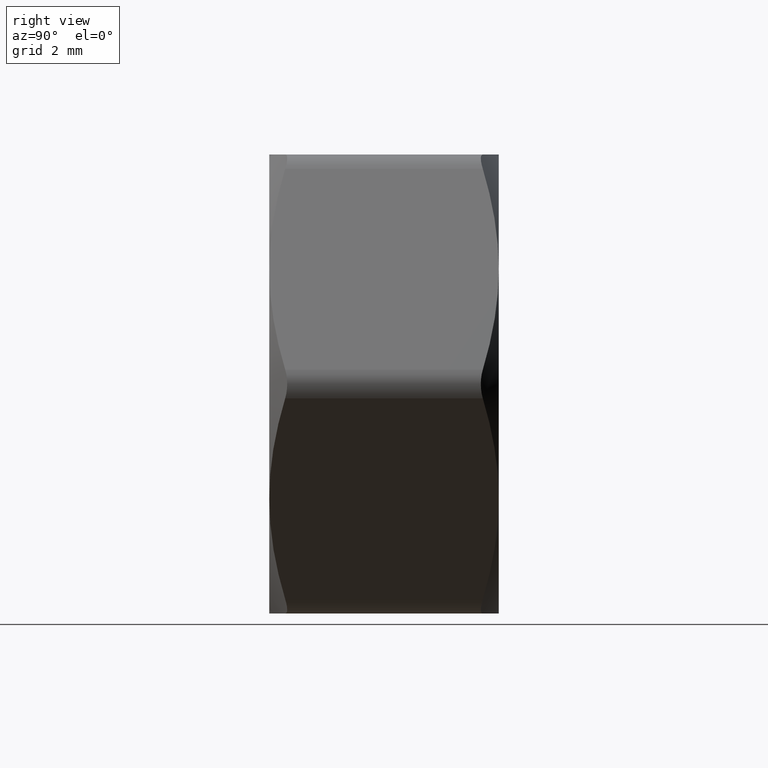
[diagram: clean part render]
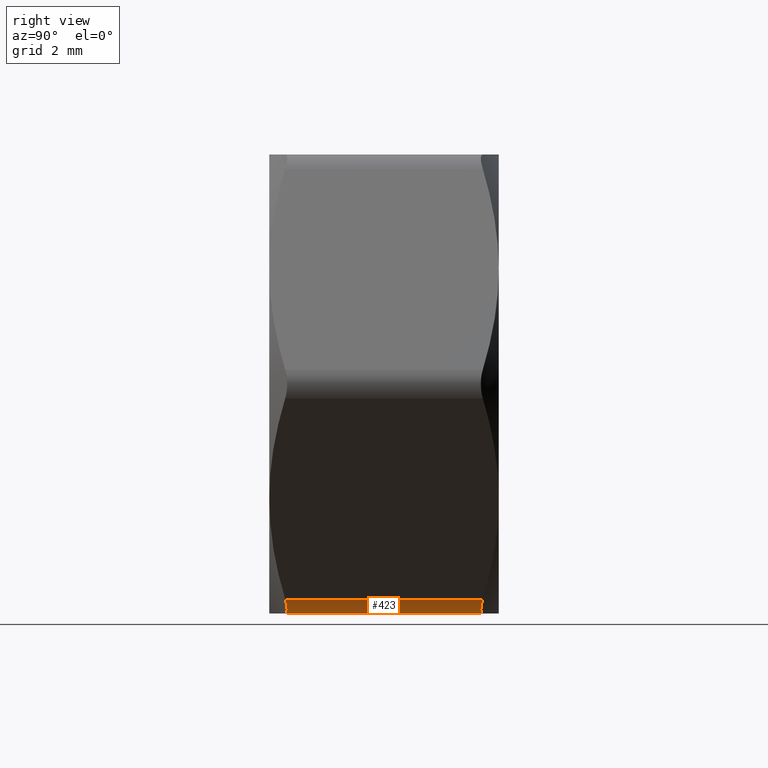
[diagram: same view with one face highlighted and labeled with its STEP entity id]
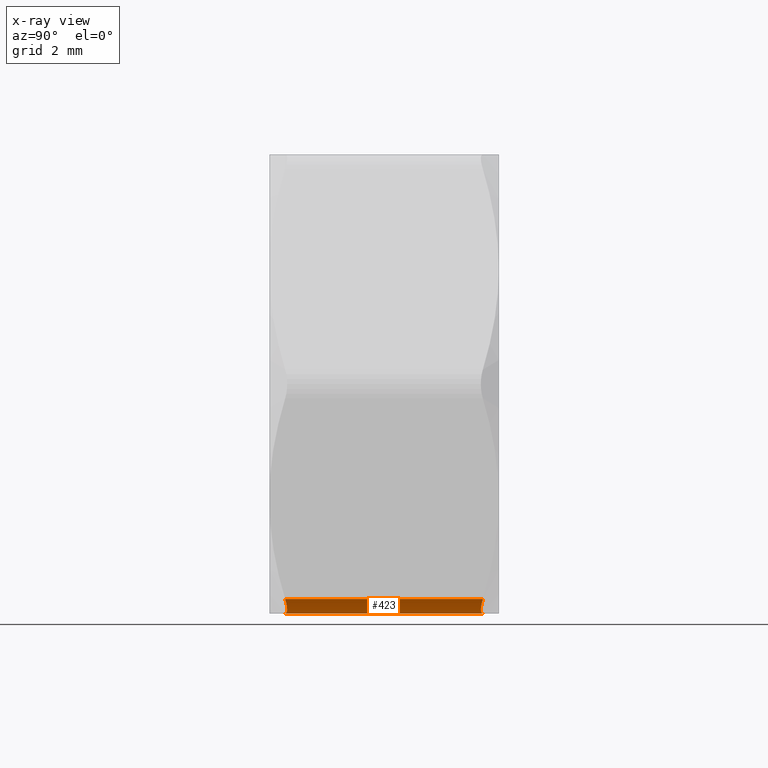
[diagram: x-ray of the same camera — body ghosted, the highlighted face saturated]
A machine part, right view. The second image highlights one B-rep face of the part: STEP entity #423.
The next image is the same camera in x-ray: the body ghosted, the highlighted face saturated — about 0% of this face is hidden behind the body in this view.
In plain terms, the highlighted cylindrical surface (edge-blend (fillet) strip) has radius 0.5 mm, axis along (0, -1, 0).
Its self-contained STEP definition (entity closure, byte-faithful):
#65 = CARTESIAN_POINT ( 'NONE',  ( 2.453738644055903700, -1.722038627381836700, -3.750000000000001300 ) ) ;
#84 = B_SPLINE_CURVE_WITH_KNOTS ( 'NONE', 3,
 ( #865, #453, #585, #720, #726, #1682 ),
 .UNSPECIFIED., .F., .F.,
 ( 4, 2, 4 ),
 ( 5.010733338089553500E-015, 0.0002633584510839048200, 0.0005267169021627995300 ),
 .UNSPECIFIED. ) ;
#158 = VECTOR ( 'NONE', #394, 1000.000000000000000 ) ;
#166 = B_SPLINE_CURVE_WITH_KNOTS ( 'NONE', 3,
 ( #493, #1573, #1578, #1282, #1165, #65 ),
 .UNSPECIFIED., .F., .F.,
 ( 4, 2, 4 ),
 ( 3.634908046050479300E-018, 0.0002633584510814149500, 0.0005267169021628269600 ),
 .UNSPECIFIED. ) ;
#171 = AXIS2_PLACEMENT_3D ( 'NONE', #480, #744, #869 ) ;
#286 = CARTESIAN_POINT ( 'NONE',  ( 2.020725942163683600, 2.000000000000000000, -4.000000000000001800 ) ) ;
#394 = DIRECTION ( 'NONE',  ( -0.0000000000000000000, 1.000000000000000000, -0.0000000000000000000 ) ) ;
#423 = ADVANCED_FACE ( 'NONE', ( #1770 ), #618, .T. ) ;
#453 = CARTESIAN_POINT ( 'NONE',  ( 2.410686618213936100, 1.699622918414652100, -3.824568296127055500 ) ) ;
#469 = ORIENTED_EDGE ( 'NONE', *, *, #1505, .F. ) ;
#480 = CARTESIAN_POINT ( 'NONE',  ( 2.020725942163683600, 2.000000000000000000, -3.500000000000001800 ) ) ;
#493 = CARTESIAN_POINT ( 'NONE',  ( 2.020725942163680100, -1.722038627381837100, -4.000000000000001800 ) ) ;
#548 = VERTEX_POINT ( 'NONE', #741 ) ;
#585 = CARTESIAN_POINT ( 'NONE',  ( 2.347204644579829600, 1.687431351220646200, -3.888770631432052000 ) ) ;
#590 = EDGE_LOOP ( 'NONE', ( #1453, #668, #469, #1773 ) ) ;
#618 = CYLINDRICAL_SURFACE ( 'NONE', #171, 0.5000000000000000000 ) ;
#668 = ORIENTED_EDGE ( 'NONE', *, *, #913, .F. ) ;
#720 = CARTESIAN_POINT ( 'NONE',  ( 2.194987963368449700, 1.687354054466041000, -3.976826692794182400 ) ) ;
#726 = CARTESIAN_POINT ( 'NONE',  ( 2.106856234927630300, 1.699616087002128900, -4.000000000000003600 ) ) ;
#741 = CARTESIAN_POINT ( 'NONE',  ( 2.453738644053324000, 1.722038627380494200, -3.750000000004468900 ) ) ;
#744 = DIRECTION ( 'NONE',  ( 0.0000000000000000000, -1.000000000000000000, 0.0000000000000000000 ) ) ;
#751 = LINE ( 'NONE', #819, #158 ) ;
#753 = VERTEX_POINT ( 'NONE', #1730 ) ;
#819 = CARTESIAN_POINT ( 'NONE',  ( 2.453738644055903300, 2.000000000000000000, -3.750000000000002200 ) ) ;
#865 = CARTESIAN_POINT ( 'NONE',  ( 2.453738644053324000, 1.722038627380494200, -3.750000000004468900 ) ) ;
#869 = DIRECTION ( 'NONE',  ( 0.0000000000000000000, 0.0000000000000000000, -1.000000000000000000 ) ) ;
#913 = EDGE_CURVE ( 'NONE', #1681, #548, #751, .T. ) ;
#1165 = CARTESIAN_POINT ( 'NONE',  ( 2.410673497673494500, -1.699616087001901500, -3.824591021569729400 ) ) ;
#1180 = CARTESIAN_POINT ( 'NONE',  ( 2.453738644055903700, -1.722038627381836700, -3.750000000000001300 ) ) ;
#1260 = EDGE_CURVE ( 'NONE', #1594, #753, #1717, .T. ) ;
#1282 = CARTESIAN_POINT ( 'NONE',  ( 2.346538960722227800, -1.687354054465799700, -3.889328683676562800 ) ) ;
#1370 = DIRECTION ( 'NONE',  ( 0.0000000000000000000, -1.000000000000000000, 0.0000000000000000000 ) ) ;
#1453 = ORIENTED_EDGE ( 'NONE', *, *, #1479, .F. ) ;
#1479 = EDGE_CURVE ( 'NONE', #548, #1594, #84, .T. ) ;
#1505 = EDGE_CURVE ( 'NONE', #753, #1681, #166, .T. ) ;
#1573 = CARTESIAN_POINT ( 'NONE',  ( 2.106829993848384800, -1.699622918415795200, -4.000000000000002700 ) ) ;
#1578 = CARTESIAN_POINT ( 'NONE',  ( 2.194171834017785400, -1.687431351220890500, -3.977124165804344400 ) ) ;
#1584 = CARTESIAN_POINT ( 'NONE',  ( 2.020725942163680100, 1.722038627381837100, -4.000000000000001800 ) ) ;
#1594 = VERTEX_POINT ( 'NONE', #1584 ) ;
#1677 = VECTOR ( 'NONE', #1370, 1000.000000000000000 ) ;
#1681 = VERTEX_POINT ( 'NONE', #1180 ) ;
#1682 = CARTESIAN_POINT ( 'NONE',  ( 2.020725942163680100, 1.722038627381837100, -4.000000000000001800 ) ) ;
#1717 = LINE ( 'NONE', #286, #1677 ) ;
#1730 = CARTESIAN_POINT ( 'NONE',  ( 2.020725942163680100, -1.722038627381837100, -4.000000000000001800 ) ) ;
#1770 = FACE_OUTER_BOUND ( 'NONE', #590, .T. ) ;
#1773 = ORIENTED_EDGE ( 'NONE', *, *, #1260, .F. ) ;